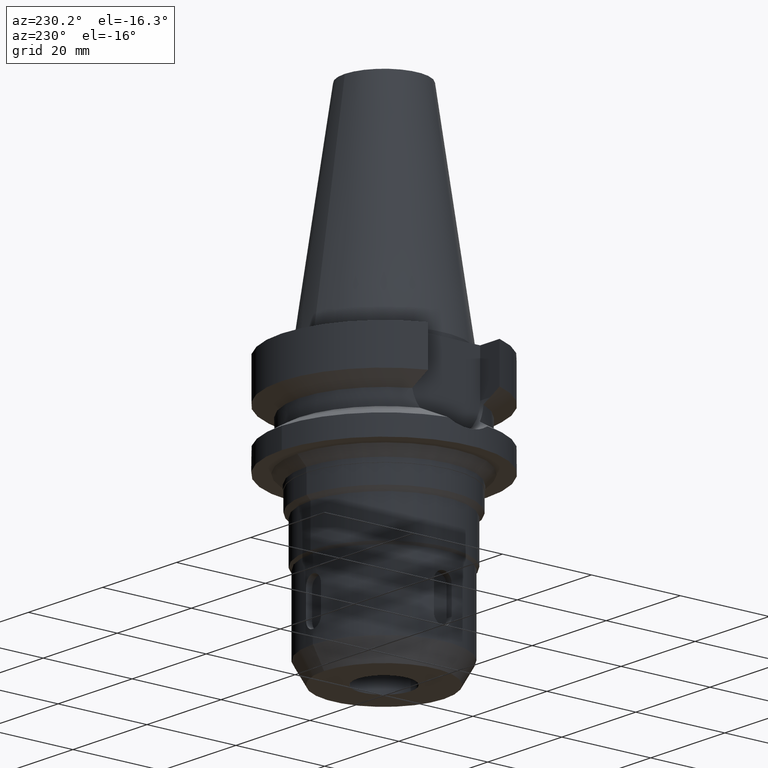
[diagram: clean part render]
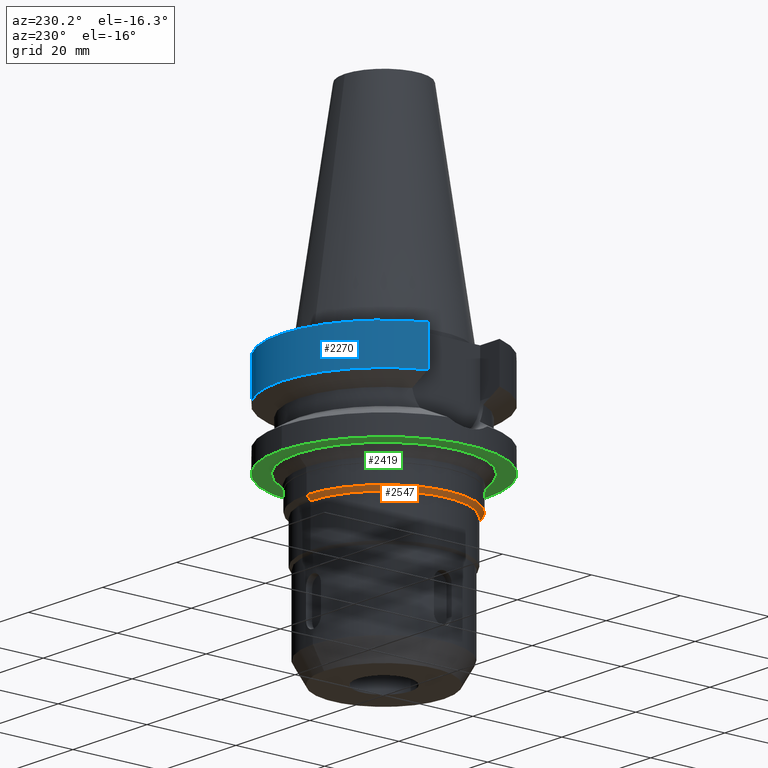
[diagram: same view with three faces highlighted in distinct colors, each labeled with its STEP entity id]
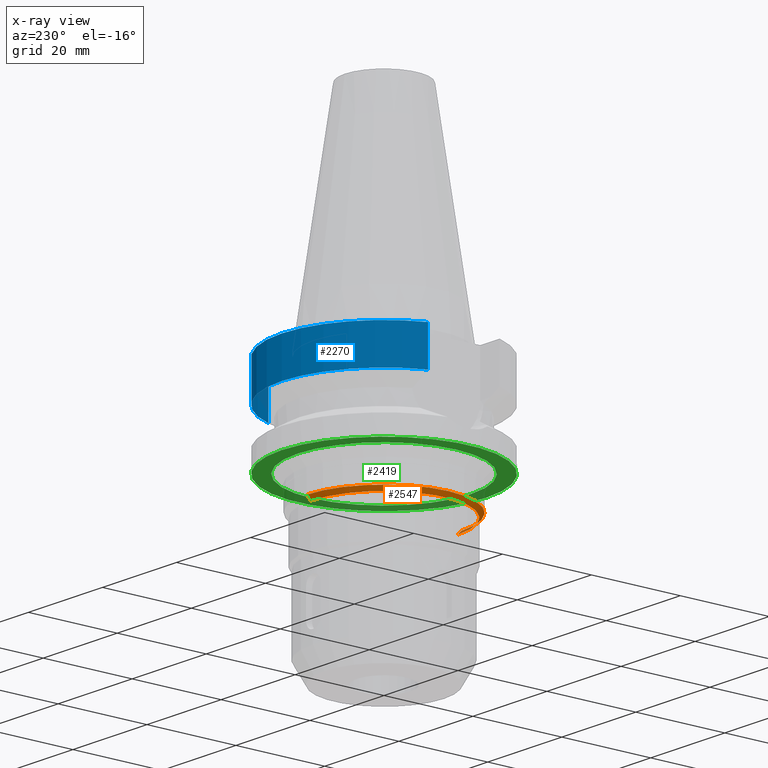
[diagram: x-ray of the same camera — body ghosted, the three highlighted faces saturated]
A machine part, auxiliary view with three faces highlighted in distinct colors.
The next image is the same camera in x-ray (body ghosted, the three faces saturated) — at least one of them is partly hidden behind the body in this view.
Their STEP definitions:

[orange] entity #2547 — the highlighted conical surface has half-angle 45 deg.
#741=DIRECTION('',(0.E0,-7.071067811866E-1,-7.071067811865E-1));
#742=VECTOR('',#741,1.272792206136E0);
#743=CARTESIAN_POINT('',(0.E0,1.74E1,-2.9E1));
#744=LINE('',#743,#742);
#764=CARTESIAN_POINT('',(0.E0,0.E0,-2.9E1));
#765=DIRECTION('',(0.E0,0.E0,1.E0));
#766=DIRECTION('',(0.E0,1.E0,0.E0));
#767=AXIS2_PLACEMENT_3D('',#764,#765,#766);
#772=DIRECTION('',(0.E0,7.071067811866E-1,-7.071067811865E-1));
#773=VECTOR('',#772,1.272792206136E0);
#774=CARTESIAN_POINT('',(0.E0,-1.74E1,-2.9E1));
#775=LINE('',#774,#773);
#779=CARTESIAN_POINT('',(0.E0,0.E0,-2.99E1));
#780=DIRECTION('',(0.E0,0.E0,-1.E0));
#781=DIRECTION('',(0.E0,-1.E0,0.E0));
#782=AXIS2_PLACEMENT_3D('',#779,#780,#781);
#1857=CARTESIAN_POINT('',(0.E0,1.65E1,-2.99E1));
#1858=VERTEX_POINT('',#1857);
#1859=CARTESIAN_POINT('',(0.E0,-1.65E1,-2.99E1));
#1860=VERTEX_POINT('',#1859);
#1861=CARTESIAN_POINT('',(0.E0,1.74E1,-2.9E1));
#1862=VERTEX_POINT('',#1861);
#1863=CARTESIAN_POINT('',(0.E0,-1.74E1,-2.9E1));
#1864=VERTEX_POINT('',#1863);
#2535=CARTESIAN_POINT('',(0.E0,0.E0,-2.945E1));
#2536=DIRECTION('',(0.E0,0.E0,1.E0));
#2537=DIRECTION('',(0.E0,1.E0,0.E0));
#2538=AXIS2_PLACEMENT_3D('',#2535,#2536,#2537);
#2539=CONICAL_SURFACE('',#2538,1.695E1,4.5E1);
#2540=ORIENTED_EDGE('',*,*,#2525,.F.);
#2541=ORIENTED_EDGE('',*,*,#2502,.T.);
#2542=ORIENTED_EDGE('',*,*,#2529,.T.);
#2544=ORIENTED_EDGE('',*,*,#2543,.T.);
#2545=EDGE_LOOP('',(#2540,#2541,#2542,#2544));
#2546=FACE_OUTER_BOUND('',#2545,.F.);
#768=CIRCLE('',#767,1.74E1);
#783=CIRCLE('',#782,1.65E1);
#2502=EDGE_CURVE('',#1862,#1864,#768,.T.);
#2525=EDGE_CURVE('',#1862,#1858,#744,.T.);
#2529=EDGE_CURVE('',#1864,#1860,#775,.T.);
#2543=EDGE_CURVE('',#1860,#1858,#783,.T.);
#2547=ADVANCED_FACE('',(#2546),#2539,.T.);

[blue] entity #2270 — the highlighted cylindrical surface (partial cylindrical patch) has radius 23 mm, axis along (0, 0, -1).
#108=CARTESIAN_POINT('',(0.E0,1.883751706448E-14,-1.E0));
#109=DIRECTION('',(0.E0,0.E0,-1.E0));
#110=DIRECTION('',(-9.367496997598E-1,3.5E-1,0.E0));
#111=AXIS2_PLACEMENT_3D('',#108,#109,#110);
#116=CARTESIAN_POINT('',(0.E0,1.883751706448E-14,-1.E0));
#117=DIRECTION('',(0.E0,0.E0,-1.E0));
#118=DIRECTION('',(0.E0,1.E0,0.E0));
#119=AXIS2_PLACEMENT_3D('',#116,#117,#118);
#323=CARTESIAN_POINT('',(2.154524325238E1,8.049999577379E0,-9.567211146543E0));
#376=CARTESIAN_POINT('',(0.E0,1.093341284897E-14,-9.567208369711E0));
#377=DIRECTION('',(0.E0,0.E0,1.E0));
#378=DIRECTION('',(9.367496997597E-1,3.500000000001E-1,0.E0));
#379=AXIS2_PLACEMENT_3D('',#376,#377,#378);
#384=CARTESIAN_POINT('',(0.E0,1.093341284897E-14,-9.567208369711E0));
#385=DIRECTION('',(0.E0,0.E0,1.E0));
#386=DIRECTION('',(0.E0,1.E0,0.E0));
#387=AXIS2_PLACEMENT_3D('',#384,#385,#386);
#397=CARTESIAN_POINT('',(-2.154524231189E1,8.050002094538E0,-9.567194606710E0));
#402=DIRECTION('',(9.134696492507E-8,2.444834607304E-7,-1.E0));
#403=VECTOR('',#402,8.567194606710E0);
#404=CARTESIAN_POINT('',(-2.154524309447E1,8.05E0,-1.E0));
#405=LINE('',#404,#403);
#409=DIRECTION('',(-1.843134485871E-8,4.933012910311E-8,1.E0));
#410=VECTOR('',#409,8.567211146543E0);
#411=CARTESIAN_POINT('',(2.154524325238E1,8.049999577379E0,-9.567211146543E0));
#412=LINE('',#411,#410);
#1933=VERTEX_POINT('',#397);
#1934=VERTEX_POINT('',#323);
#1935=CARTESIAN_POINT('',(0.E0,2.3E1,-9.567208369711E0));
#1936=VERTEX_POINT('',#1935);
#1943=CARTESIAN_POINT('',(-2.154524309447E1,8.05E0,-1.E0));
#1944=VERTEX_POINT('',#1943);
#1945=CARTESIAN_POINT('',(0.E0,2.3E1,-1.E0));
#1946=CARTESIAN_POINT('',(2.154524309447E1,8.05E0,-1.E0));
#1947=VERTEX_POINT('',#1945);
#1948=VERTEX_POINT('',#1946);
#2257=CARTESIAN_POINT('',(0.E0,1.883751706448E-14,5.382E1));
#2258=DIRECTION('',(0.E0,0.E0,-1.E0));
#2259=DIRECTION('',(0.E0,-1.E0,0.E0));
#2260=AXIS2_PLACEMENT_3D('',#2257,#2258,#2259);
#2261=CYLINDRICAL_SURFACE('',#2260,2.3E1);
#2262=ORIENTED_EDGE('',*,*,#2248,.T.);
#2263=ORIENTED_EDGE('',*,*,#2237,.F.);
#2264=ORIENTED_EDGE('',*,*,#2235,.F.);
#2265=ORIENTED_EDGE('',*,*,#2214,.T.);
#2266=ORIENTED_EDGE('',*,*,#2080,.F.);
#2267=ORIENTED_EDGE('',*,*,#2078,.F.);
#2268=EDGE_LOOP('',(#2262,#2263,#2264,#2265,#2266,#2267));
#2269=FACE_OUTER_BOUND('',#2268,.F.);
#112=CIRCLE('',#111,2.3E1);
#120=CIRCLE('',#119,2.3E1);
#380=CIRCLE('',#379,2.3E1);
#388=CIRCLE('',#387,2.3E1);
#2078=EDGE_CURVE('',#1944,#1947,#112,.T.);
#2080=EDGE_CURVE('',#1947,#1948,#120,.T.);
#2214=EDGE_CURVE('',#1934,#1948,#412,.T.);
#2235=EDGE_CURVE('',#1934,#1936,#380,.T.);
#2237=EDGE_CURVE('',#1936,#1933,#388,.T.);
#2248=EDGE_CURVE('',#1944,#1933,#405,.T.);
#2270=ADVANCED_FACE('',(#2269),#2261,.T.);

[green] entity #2419 — the highlighted planar face has unit normal (0, 0, -1).
#619=CARTESIAN_POINT('',(0.E0,1.883751706448E-14,-2.2E1));
#620=DIRECTION('',(0.E0,0.E0,1.E0));
#621=DIRECTION('',(0.E0,-1.E0,0.E0));
#622=AXIS2_PLACEMENT_3D('',#619,#620,#621);
#627=CARTESIAN_POINT('',(0.E0,1.883751706448E-14,-2.2E1));
#628=DIRECTION('',(0.E0,0.E0,1.E0));
#629=DIRECTION('',(0.E0,1.E0,0.E0));
#630=AXIS2_PLACEMENT_3D('',#627,#628,#629);
#635=CARTESIAN_POINT('',(0.E0,0.E0,-2.2E1));
#636=DIRECTION('',(0.E0,0.E0,-1.E0));
#637=DIRECTION('',(0.E0,-1.E0,0.E0));
#638=AXIS2_PLACEMENT_3D('',#635,#636,#637);
#643=CARTESIAN_POINT('',(0.E0,0.E0,-2.2E1));
#644=DIRECTION('',(0.E0,0.E0,-1.E0));
#645=DIRECTION('',(0.E0,1.E0,0.E0));
#646=AXIS2_PLACEMENT_3D('',#643,#644,#645);
#1877=CARTESIAN_POINT('',(0.E0,1.95E1,-2.2E1));
#1878=VERTEX_POINT('',#1877);
#1879=CARTESIAN_POINT('',(0.E0,-1.95E1,-2.2E1));
#1880=VERTEX_POINT('',#1879);
#1881=CARTESIAN_POINT('',(0.E0,-2.3E1,-2.2E1));
#1882=CARTESIAN_POINT('',(0.E0,2.3E1,-2.2E1));
#1883=VERTEX_POINT('',#1881);
#1884=VERTEX_POINT('',#1882);
#2404=CARTESIAN_POINT('',(0.E0,0.E0,-2.2E1));
#2405=DIRECTION('',(0.E0,0.E0,-1.E0));
#2406=DIRECTION('',(0.E0,-1.E0,0.E0));
#2407=AXIS2_PLACEMENT_3D('',#2404,#2405,#2406);
#2408=PLANE('',#2407);
#2409=ORIENTED_EDGE('',*,*,#2364,.T.);
#2410=ORIENTED_EDGE('',*,*,#2397,.T.);
#2411=EDGE_LOOP('',(#2409,#2410));
#2412=FACE_OUTER_BOUND('',#2411,.F.);
#2414=ORIENTED_EDGE('',*,*,#2413,.T.);
#2416=ORIENTED_EDGE('',*,*,#2415,.T.);
#2417=EDGE_LOOP('',(#2414,#2416));
#2418=FACE_BOUND('',#2417,.F.);
#623=CIRCLE('',#622,2.3E1);
#631=CIRCLE('',#630,2.3E1);
#639=CIRCLE('',#638,1.95E1);
#647=CIRCLE('',#646,1.95E1);
#2364=EDGE_CURVE('',#1883,#1884,#623,.T.);
#2397=EDGE_CURVE('',#1884,#1883,#631,.T.);
#2413=EDGE_CURVE('',#1880,#1878,#639,.T.);
#2415=EDGE_CURVE('',#1878,#1880,#647,.T.);
#2419=ADVANCED_FACE('',(#2412,#2418),#2408,.T.);